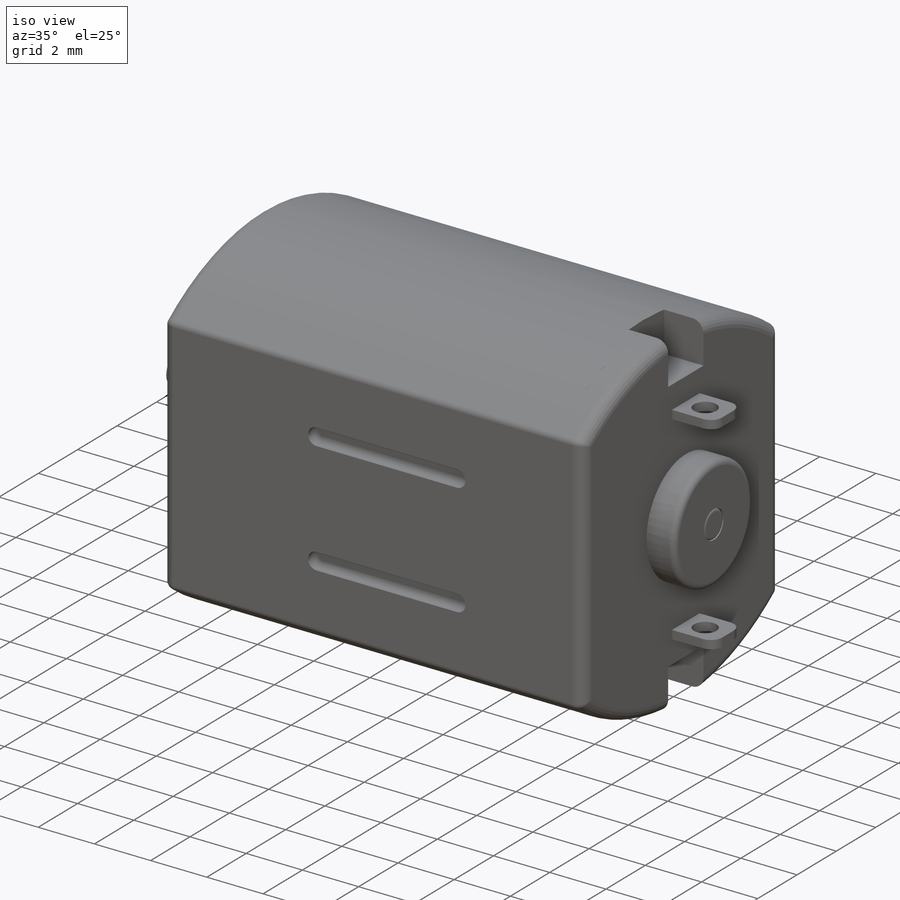
[diagram: iso view]
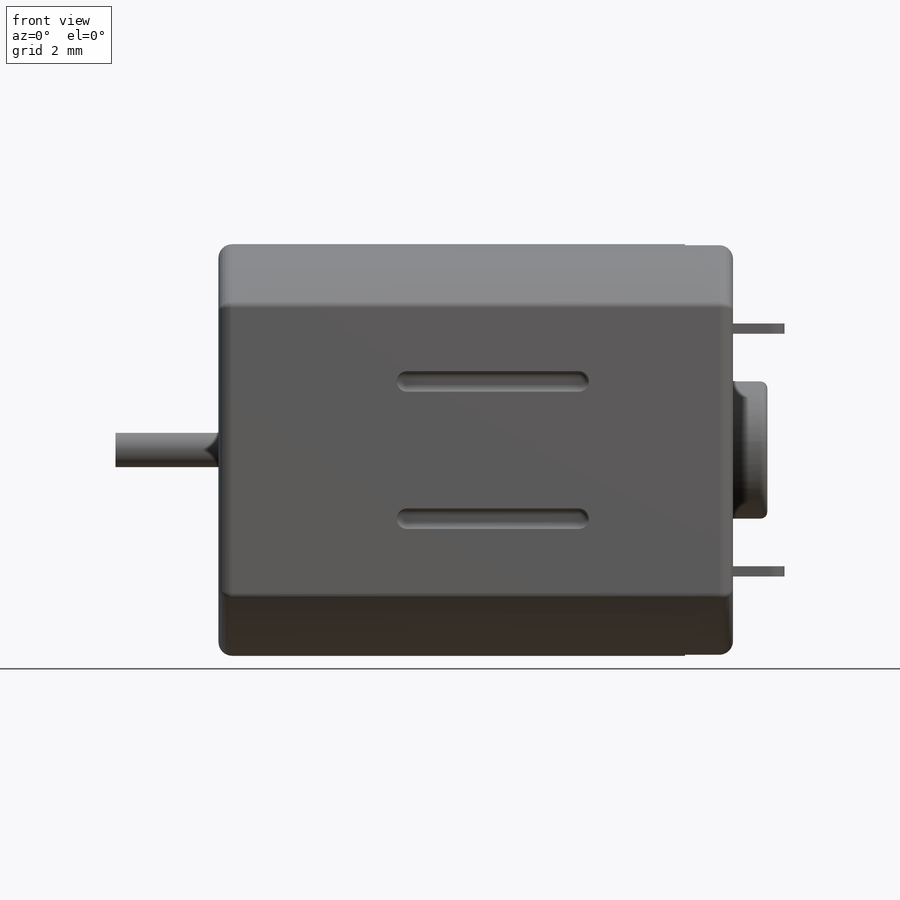
[diagram: front view]
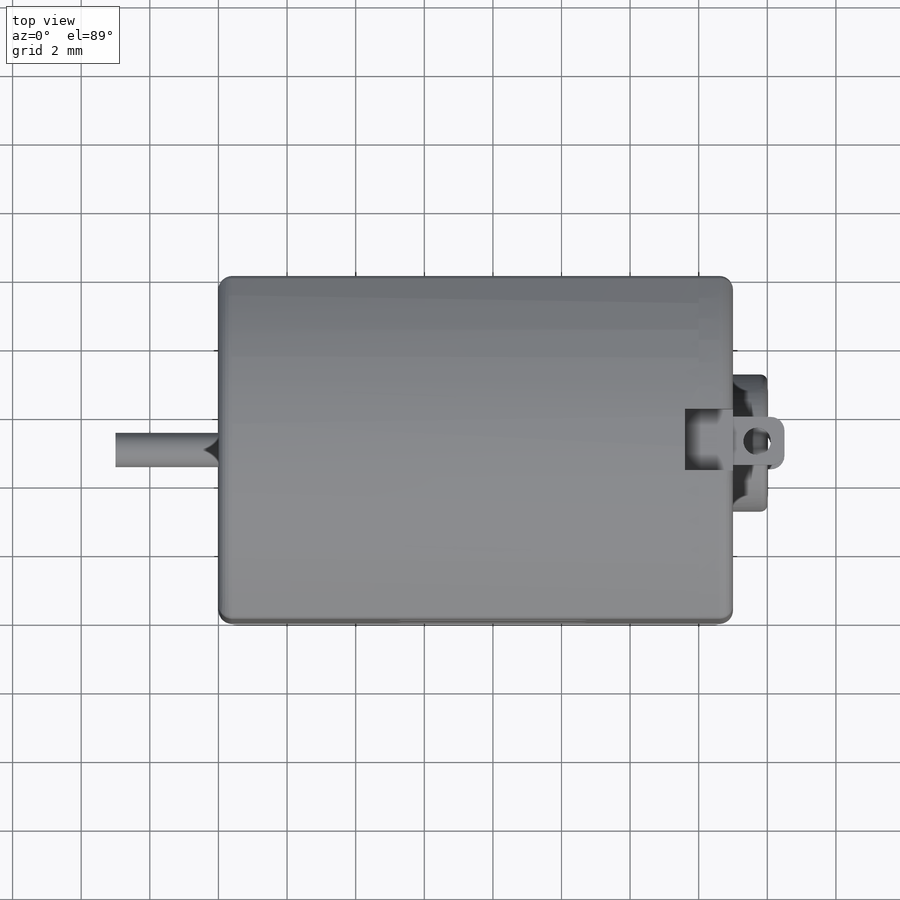
[diagram: top view]
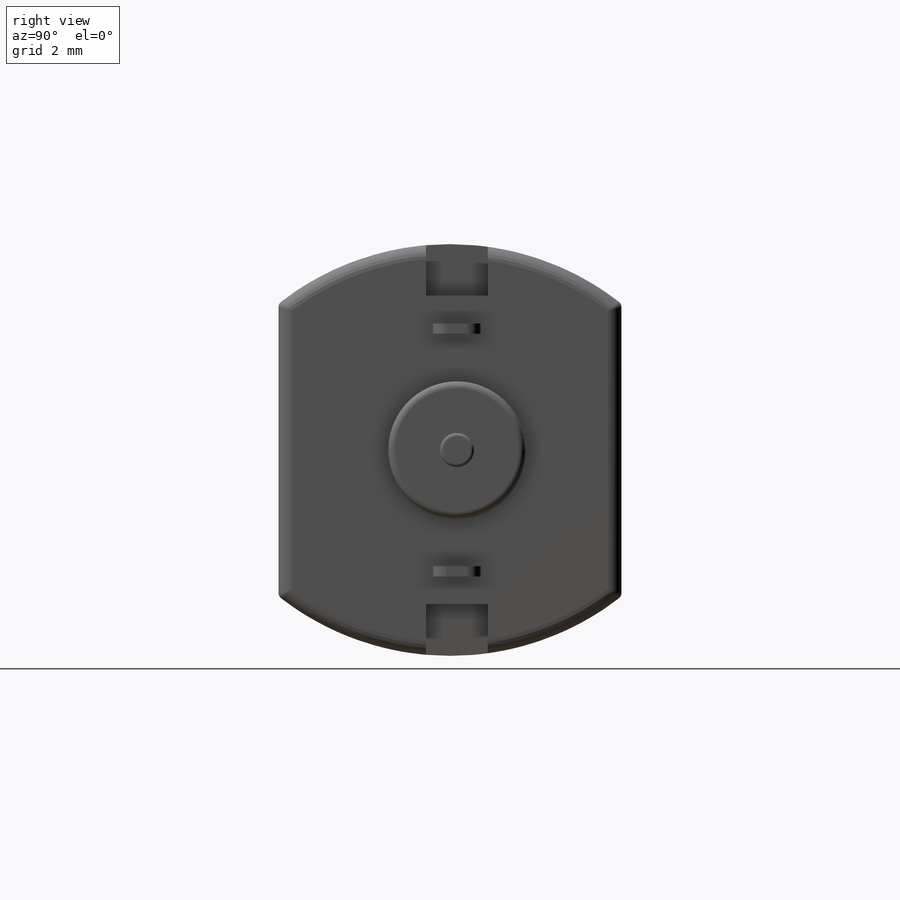
[diagram: right view]
SOLIDWORKS PART (.sldprt)
format: sldprt  version: not decoded by parser v0  size: 632,320 bytes
history: native  units: mm
features: sketch x11, fillet x8, extrude x6, cut_extrude x5, plane x4, mirror x2, material x1 (+8 scaffold rows collapsed)
feature tree (45):
  scaffold x8  (default folders/planes/origin — collapsed)
  material  "氧化铝"
  plane  "前视基准面"
  plane  "上视基准面"
  plane  "右视基准面"
  sketch  "草图5"  dims[D1=6.0mm D2=14.0mm D3=1.0mm D4=1.0mm]
  extrude  "凸台-拉伸3"  Depth=10mm
  sketch  "草图6"  dims[D1=1.0mm]
  extrude  "凸台-拉伸4"  Depth=10mm
  sketch  "草图7"  dims[D2=1.0mm D1=5.0mm]
  extrude  "凸台-拉伸5"  Depth=3mm
  sketch  "草图8"  dims[D1=~2.683375mm D2=2.0mm]
  cut_extrude  "切除-拉伸2"  [1 undecoded]
  sketch  "草图11"
  cut_extrude  "切除-拉伸8"  Depth=3mm
  fillet  "圆角6"  Radius=0.4mm
  fillet  "圆角3"  Radius=0.2mm
  fillet  "圆角4"  Radius=0.2mm
  sketch  "草图12"  dims[D2=0.3mm D1=2.0mm D3=5.0mm D4=8.0mm]
  cut_extrude  "切除-拉伸9"  Depth=0.3mm
  fillet  "圆角5"  Radius=0.2mm
  plane  "基准面2"  Offset=5mm
  mirror  "镜向1"
  sketch  "草图13"  dims[D1=1.2mm]
  extrude  "凸台-拉伸6"  Depth=1mm
  sketch  "草图14"  dims[D1=0.0mm]
  extrude  "凸台-拉伸7"  Depth=1mm
  fillet  "圆角7"  Radius=0.4mm
  sketch  "草图15"  dims[D1=0.7mm D2=0.3mm]
  extrude  "凸台-拉伸8"  Depth=1.5mm
  sketch  "草图16"  dims[D1=~0.713771mm D2=0.8mm]
  cut_extrude  "切除-拉伸10"  [1 undecoded]
  mirror  "镜向2"
  fillet  "圆角8"  Radius=0.4mm
  sketch  "草图17"  dims[D1=4.5mm D2=2.0mm D3=0.9mm]
  cut_extrude  "切除-拉伸11"  Depth=1.4mm
  fillet  "圆角9"  Radius=0.2mm
  fillet  "圆角10"  Radius=0.1mm
decode coverage: 27 of 32 modeling features carry decoded parameters
note: ~ marks probable driven/reference dimensions
note: 2 parameter values undecoded
note: suppression state not decoded; provenance and decode notes live in map.json
